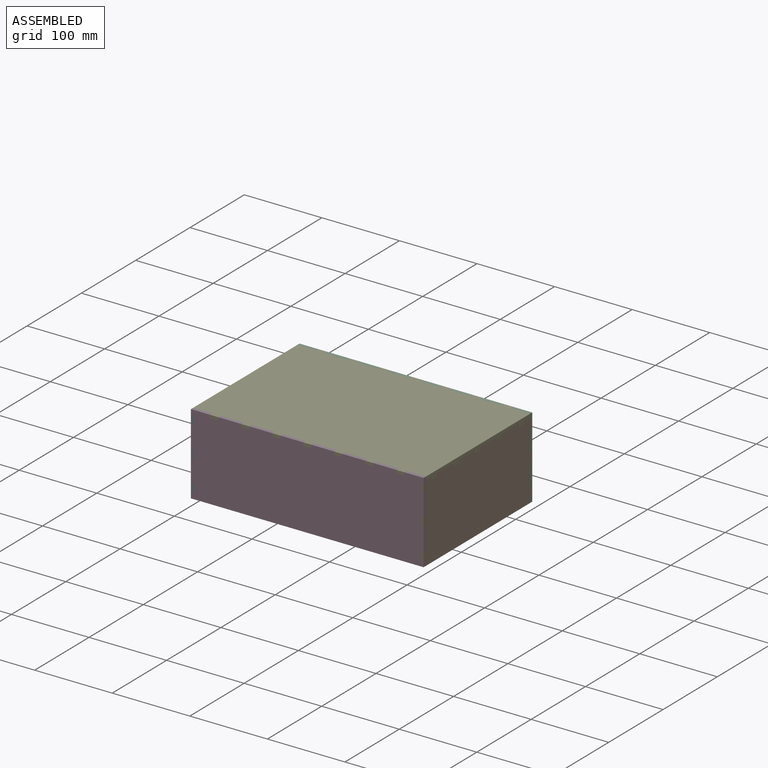
[diagram: assembled view]
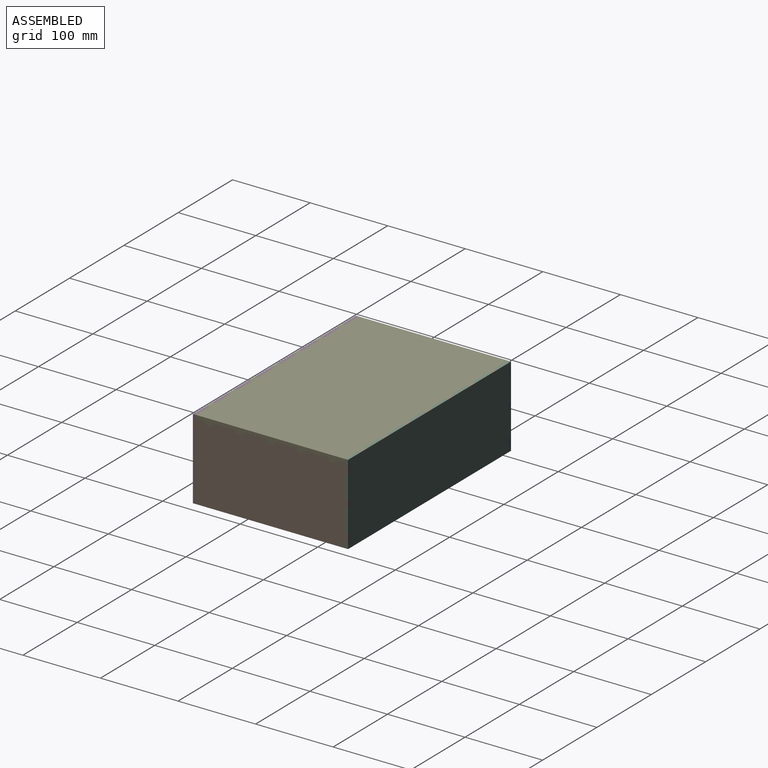
[diagram: assembled view, second angle]
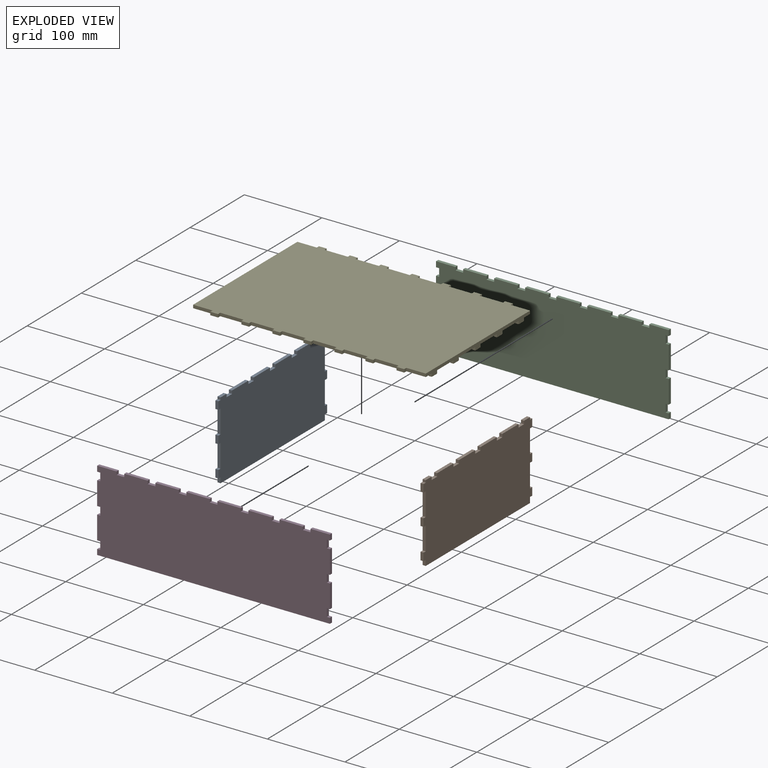
[diagram: exploded view]
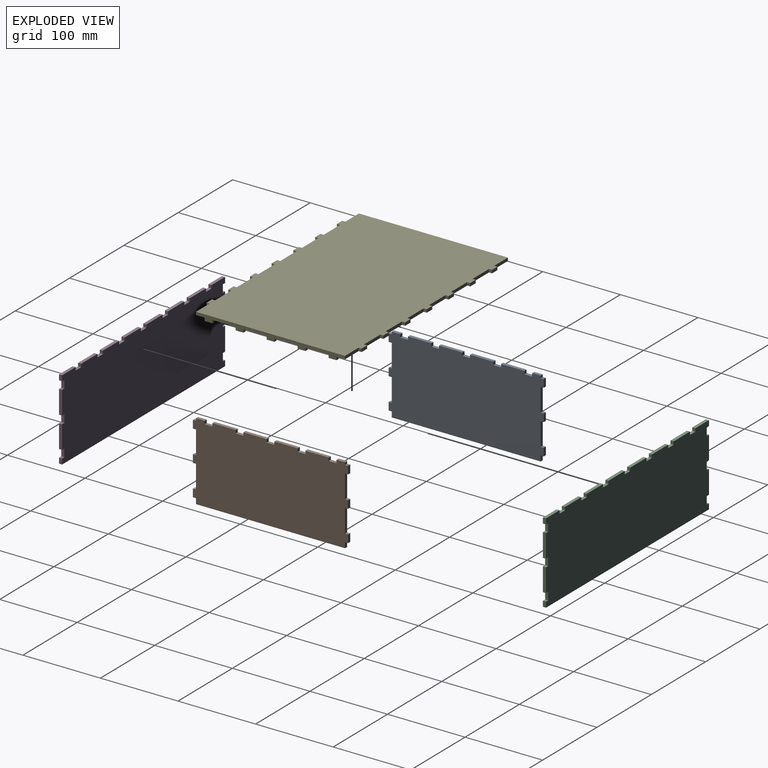
[diagram: exploded view, second angle]
ASSEMBLY  parts=5 mates=4
PART A: 50 faces, bbox 4x200x100 mm
  f0: plane 30x4mm, normal (0,0,1), area 120mm2, adj f5,f6,f45,f47
  f1: plane 30x4mm, normal (0,0,1), area 120mm2, adj f5,f6,f42,f44
  f2: plane 30x4mm, normal (0,0,1), area 120mm2, adj f5,f6,f39,f41
  f3: plane 30x4mm, normal (0,0,1), area 120mm2, adj f5,f6,f36,f38
  f4: plane 11x4mm, normal (0,0,1), area 44mm2, adj f5,f6,f11,f35
  f5: plane 200x100mm, normal (-1,0,0), area 19240.2mm2, adj f0,f1,f2,f3,f4,f7,f8,f9
  f6: plane 200x100mm, normal (1,0,0), area 19240.2mm2, adj f0,f1,f2,f3,f4,f7,f8,f9
  f7: plane 29.99x4mm, normal (0,-1,0), area 120mm2, adj f5,f6,f28,f31
  f8: plane 29.99x4mm, normal (0,-1,0), area 120mm2, adj f5,f6,f30,f33
  f9: plane 6.99x4mm, normal (0,-1,0), area 28mm2, adj f5,f6,f13,f32
  f10: plane 29.99x4mm, normal (0,1,0), area 120mm2, adj f5,f6,f20,f24
  f11: plane 4x3mm, normal (0,1,0), area 12mm2, adj f4,f5,f6,f21
  f12: plane 29.99x4mm, normal (0,1,0), area 120mm2, adj f5,f6,f18,f23
  f13: plane 192x4mm, normal (0,0,-1), area 768mm2, adj f5,f6,f9,f16
  f14: plane 11x4mm, normal (0,0,1), area 44mm2, adj f5,f6,f15,f48
  f15: plane 4x3mm, normal (0,-1,0), area 12mm2, adj f5,f6,f14,f27
  f16: plane 6.99x4mm, normal (0,1,0), area 28mm2, adj f5,f6,f13,f17
  f17: plane 4x4mm, normal (0,0,-1), area 16mm2, adj f5,f6,f16,f19
  f18: plane 4x4mm, normal (0,0,1), area 16mm2, adj f5,f6,f12,f19
  f19: plane 10.01x4mm, normal (0,1,0), area 40mm2, adj f5,f6,f17,f18
  f20: plane 4x4mm, normal (0,0,-1), area 16mm2, adj f5,f6,f10,f22
  f21: plane 4x4mm, normal (0,0,1), area 16mm2, adj f5,f6,f11,f22
  f22: plane 10.01x4mm, normal (0,1,0), area 40mm2, adj f5,f6,f20,f21
  f23: plane 4x4mm, normal (0,0,-1), area 16mm2, adj f5,f6,f12,f25
  f24: plane 4x4mm, normal (0,0,1), area 16mm2, adj f5,f6,f10,f25
  f25: plane 10.01x4mm, normal (0,1,0), area 40mm2, adj f5,f6,f23,f24
  f26: plane 10.01x4mm, normal (0,-1,0), area 40mm2, adj f5,f6,f27,f28
  f27: plane 4x4mm, normal (0,0,1), area 16mm2, adj f5,f6,f15,f26
  f28: plane 4x4mm, normal (0,0,-1), area 16mm2, adj f5,f6,f7,f26
  f29: plane 10.01x4mm, normal (0,-1,0), area 40mm2, adj f5,f6,f30,f31
  f30: plane 4x4mm, normal (0,0,-1), area 16mm2, adj f5,f6,f8,f29
  f31: plane 4x4mm, normal (0,0,1), area 16mm2, adj f5,f6,f7,f29
  f32: plane 4x4mm, normal (0,0,-1), area 16mm2, adj f5,f6,f9,f34
  f33: plane 4x4mm, normal (0,0,1), area 16mm2, adj f5,f6,f8,f34
  f34: plane 10.01x4mm, normal (0,-1,0), area 40mm2, adj f5,f6,f32,f33
  f35: plane 4x4mm, normal (0,-1,0), area 16mm2, adj f4,f5,f6,f37
  f36: plane 4x4mm, normal (0,1,0), area 16mm2, adj f3,f5,f6,f37
  f37: plane 10x4mm, normal (0,0,1), area 40mm2, adj f5,f6,f35,f36
  f38: plane 4x4mm, normal (0,-1,0), area 16mm2, adj f3,f5,f6,f40
  f39: plane 4x4mm, normal (0,1,0), area 16mm2, adj f2,f5,f6,f40
  f40: plane 10x4mm, normal (0,0,1), area 40mm2, adj f5,f6,f38,f39
  f41: plane 4x4mm, normal (0,-1,0), area 16mm2, adj f2,f5,f6,f43
  f42: plane 4x4mm, normal (0,1,0), area 16mm2, adj f1,f5,f6,f43
  f43: plane 10x4mm, normal (0,0,1), area 40mm2, adj f5,f6,f41,f42
  f44: plane 4x4mm, normal (0,-1,0), area 16mm2, adj f1,f5,f6,f46
  f45: plane 4x4mm, normal (0,1,0), area 16mm2, adj f0,f5,f6,f46
  f46: plane 10x4mm, normal (0,0,1), area 40mm2, adj f5,f6,f44,f45
  f47: plane 4x4mm, normal (0,-1,0), area 16mm2, adj f0,f5,f6,f49
  f48: plane 4x4mm, normal (0,1,0), area 16mm2, adj f5,f6,f14,f49
  f49: plane 10x4mm, normal (0,0,1), area 40mm2, adj f5,f6,f47,f48
PART B: 50 faces, bbox 4x200x100 mm
  f0: plane 30x4mm, normal (0,0,1), area 120mm2, adj f5,f6,f45,f47
  f1: plane 30x4mm, normal (0,0,1), area 120mm2, adj f5,f6,f42,f44
  f2: plane 30x4mm, normal (0,0,1), area 120mm2, adj f5,f6,f39,f41
  f3: plane 30x4mm, normal (0,0,1), area 120mm2, adj f5,f6,f36,f38
  f4: plane 11x4mm, normal (0,0,1), area 44mm2, adj f5,f6,f11,f35
  f5: plane 200x100mm, normal (1,0,0), area 19240.2mm2, adj f0,f1,f2,f3,f4,f7,f8,f9
  f6: plane 200x100mm, normal (-1,0,0), area 19240.2mm2, adj f0,f1,f2,f3,f4,f7,f8,f9
  f7: plane 29.99x4mm, normal (0,1,0), area 120mm2, adj f5,f6,f28,f31
  f8: plane 29.99x4mm, normal (0,1,0), area 120mm2, adj f5,f6,f30,f33
  f9: plane 6.99x4mm, normal (0,1,0), area 28mm2, adj f5,f6,f13,f32
  f10: plane 29.99x4mm, normal (0,-1,0), area 120mm2, adj f5,f6,f20,f24
  f11: plane 4x3mm, normal (0,-1,0), area 12mm2, adj f4,f5,f6,f21
  f12: plane 29.99x4mm, normal (0,-1,0), area 120mm2, adj f5,f6,f18,f23
  f13: plane 192x4mm, normal (0,0,-1), area 768mm2, adj f5,f6,f9,f16
  f14: plane 11x4mm, normal (0,0,1), area 44mm2, adj f5,f6,f15,f48
  f15: plane 4x3mm, normal (0,1,0), area 12mm2, adj f5,f6,f14,f27
  f16: plane 6.99x4mm, normal (0,-1,0), area 28mm2, adj f5,f6,f13,f17
  f17: plane 4x4mm, normal (0,0,-1), area 16mm2, adj f5,f6,f16,f19
  f18: plane 4x4mm, normal (0,0,1), area 16mm2, adj f5,f6,f12,f19
  f19: plane 10.01x4mm, normal (0,-1,0), area 40mm2, adj f5,f6,f17,f18
  f20: plane 4x4mm, normal (0,0,-1), area 16mm2, adj f5,f6,f10,f22
  f21: plane 4x4mm, normal (0,0,1), area 16mm2, adj f5,f6,f11,f22
  f22: plane 10.01x4mm, normal (0,-1,0), area 40mm2, adj f5,f6,f20,f21
  f23: plane 4x4mm, normal (0,0,-1), area 16mm2, adj f5,f6,f12,f25
  f24: plane 4x4mm, normal (0,0,1), area 16mm2, adj f5,f6,f10,f25
  f25: plane 10.01x4mm, normal (0,-1,0), area 40mm2, adj f5,f6,f23,f24
  f26: plane 10.01x4mm, normal (0,1,0), area 40mm2, adj f5,f6,f27,f28
  f27: plane 4x4mm, normal (0,0,1), area 16mm2, adj f5,f6,f15,f26
  f28: plane 4x4mm, normal (0,0,-1), area 16mm2, adj f5,f6,f7,f26
  f29: plane 10.01x4mm, normal (0,1,0), area 40mm2, adj f5,f6,f30,f31
  f30: plane 4x4mm, normal (0,0,-1), area 16mm2, adj f5,f6,f8,f29
  f31: plane 4x4mm, normal (0,0,1), area 16mm2, adj f5,f6,f7,f29
  f32: plane 4x4mm, normal (0,0,-1), area 16mm2, adj f5,f6,f9,f34
  f33: plane 4x4mm, normal (0,0,1), area 16mm2, adj f5,f6,f8,f34
  f34: plane 10.01x4mm, normal (0,1,0), area 40mm2, adj f5,f6,f32,f33
  f35: plane 4x4mm, normal (0,1,0), area 16mm2, adj f4,f5,f6,f37
  f36: plane 4x4mm, normal (0,-1,0), area 16mm2, adj f3,f5,f6,f37
  f37: plane 10x4mm, normal (0,0,1), area 40mm2, adj f5,f6,f35,f36
  f38: plane 4x4mm, normal (0,1,0), area 16mm2, adj f3,f5,f6,f40
  f39: plane 4x4mm, normal (0,-1,0), area 16mm2, adj f2,f5,f6,f40
  f40: plane 10x4mm, normal (0,0,1), area 40mm2, adj f5,f6,f38,f39
  f41: plane 4x4mm, normal (0,1,0), area 16mm2, adj f2,f5,f6,f43
  f42: plane 4x4mm, normal (0,-1,0), area 16mm2, adj f1,f5,f6,f43
  f43: plane 10x4mm, normal (0,0,1), area 40mm2, adj f5,f6,f41,f42
  f44: plane 4x4mm, normal (0,1,0), area 16mm2, adj f1,f5,f6,f46
  f45: plane 4x4mm, normal (0,-1,0), area 16mm2, adj f0,f5,f6,f46
  f46: plane 10x4mm, normal (0,0,1), area 40mm2, adj f5,f6,f44,f45
  f47: plane 4x4mm, normal (0,1,0), area 16mm2, adj f0,f5,f6,f49
  f48: plane 4x4mm, normal (0,-1,0), area 16mm2, adj f5,f6,f14,f49
  f49: plane 10x4mm, normal (0,0,1), area 40mm2, adj f5,f6,f47,f48
PART C: 58 faces, bbox 300x4x104 mm
  f0: plane 7x4mm, normal (-1,0,0), area 28mm2, adj f6,f7,f18,f51
  f1: plane 29.99x4mm, normal (-1,0,0), area 120mm2, adj f6,f7,f48,f49
  f2: plane 29.99x4mm, normal (-1,0,0), area 120mm2, adj f6,f7,f45,f46
  f3: plane 7x4mm, normal (1,0,0), area 28mm2, adj f6,f7,f38,f56
  f4: plane 29.99x4mm, normal (1,0,0), area 120mm2, adj f6,f7,f40,f53
  f5: plane 29.99x4mm, normal (1,0,0), area 120mm2, adj f6,f7,f41,f55
  f6: plane 300x104mm, normal (0,-1,0), area 30679.8mm2, adj f0,f1,f2,f3,f4,f5,f8,f9
  f7: plane 300x104mm, normal (0,1,0), area 30679.8mm2, adj f0,f1,f2,f3,f4,f5,f8,f9
  f8: plane 10x4mm, normal (0,0,1), area 40mm2, adj f6,f7,f34,f36
  f9: plane 10x4mm, normal (0,0,1), area 40mm2, adj f6,f7,f31,f33
  f10: plane 10x4mm, normal (0,0,1), area 40mm2, adj f6,f7,f28,f30
  f11: plane 10x4mm, normal (0,0,1), area 40mm2, adj f6,f7,f25,f27
  f12: plane 10x4mm, normal (0,0,1), area 40mm2, adj f6,f7,f37,f39
  f13: plane 10x4mm, normal (0,0,1), area 40mm2, adj f6,f7,f22,f24
  f14: plane 10x4mm, normal (0,0,1), area 40mm2, adj f6,f7,f19,f21
  f15: plane 6.99x4mm, normal (-1,0,0), area 28mm2, adj f6,f7,f17,f43
  f16: plane 6.99x4mm, normal (1,0,0), area 28mm2, adj f6,f7,f17,f52
  f17: plane 300x4mm, normal (0,0,-1), area 1200mm2, adj f6,f7,f15,f16
  f18: plane 25x4mm, normal (0,0,1), area 100mm2, adj f0,f6,f7,f19
  f19: plane 4x4mm, normal (1,0,0), area 16mm2, adj f6,f7,f14,f18
  f20: plane 30x4mm, normal (0,0,1), area 120mm2, adj f6,f7,f21,f22
  f21: plane 4x4mm, normal (-1,0,0), area 16mm2, adj f6,f7,f14,f20
  f22: plane 4x4mm, normal (1,0,0), area 16mm2, adj f6,f7,f13,f20
  f23: plane 30x4mm, normal (0,0,1), area 120mm2, adj f6,f7,f24,f25
  f24: plane 4x4mm, normal (-1,0,0), area 16mm2, adj f6,f7,f13,f23
  f25: plane 4x4mm, normal (1,0,0), area 16mm2, adj f6,f7,f11,f23
  f26: plane 30x4mm, normal (0,0,1), area 120mm2, adj f6,f7,f27,f28
  f27: plane 4x4mm, normal (-1,0,0), area 16mm2, adj f6,f7,f11,f26
  f28: plane 4x4mm, normal (1,0,0), area 16mm2, adj f6,f7,f10,f26
  f29: plane 30x4mm, normal (0,0,1), area 120mm2, adj f6,f7,f30,f31
  f30: plane 4x4mm, normal (-1,0,0), area 16mm2, adj f6,f7,f10,f29
  f31: plane 4x4mm, normal (1,0,0), area 16mm2, adj f6,f7,f9,f29
  f32: plane 30x4mm, normal (0,0,1), area 120mm2, adj f6,f7,f33,f34
  f33: plane 4x4mm, normal (-1,0,0), area 16mm2, adj f6,f7,f9,f32
  f34: plane 4x4mm, normal (1,0,0), area 16mm2, adj f6,f7,f8,f32
  f35: plane 30x4mm, normal (0,0,1), area 120mm2, adj f6,f7,f36,f37
  f36: plane 4x4mm, normal (-1,0,0), area 16mm2, adj f6,f7,f8,f35
  f37: plane 4x4mm, normal (1,0,0), area 16mm2, adj f6,f7,f12,f35
  f38: plane 25x4mm, normal (0,0,1), area 100mm2, adj f3,f6,f7,f39
  f39: plane 4x4mm, normal (-1,0,0), area 16mm2, adj f6,f7,f12,f38
  f40: plane 4x4mm, normal (0,0,1), area 16mm2, adj f4,f6,f7,f42
  f41: plane 4x4mm, normal (0,0,-1), area 16mm2, adj f5,f6,f7,f42
  f42: plane 10.01x4mm, normal (1,0,0), area 40mm2, adj f6,f7,f40,f41
  f43: plane 4x4mm, normal (0,0,1), area 16mm2, adj f6,f7,f15,f44
  f44: plane 10.01x4mm, normal (-1,0,0), area 40mm2, adj f6,f7,f43,f45
  f45: plane 4x4mm, normal (0,0,-1), area 16mm2, adj f2,f6,f7,f44
  f46: plane 4x4mm, normal (0,0,1), area 16mm2, adj f2,f6,f7,f47
  f47: plane 10.01x4mm, normal (-1,0,0), area 40mm2, adj f6,f7,f46,f48
  f48: plane 4x4mm, normal (0,0,-1), area 16mm2, adj f1,f6,f7,f47
  f49: plane 4x4mm, normal (0,0,1), area 16mm2, adj f1,f6,f7,f50
  f50: plane 10.01x4mm, normal (-1,0,0), area 40mm2, adj f6,f7,f49,f51
  f51: plane 4x4mm, normal (0,0,-1), area 16mm2, adj f0,f6,f7,f50
  f52: plane 4x4mm, normal (0,0,1), area 16mm2, adj f6,f7,f16,f54
  f53: plane 4x4mm, normal (0,0,-1), area 16mm2, adj f4,f6,f7,f54
  f54: plane 10.01x4mm, normal (1,0,0), area 40mm2, adj f6,f7,f52,f53
  f55: plane 4x4mm, normal (0,0,1), area 16mm2, adj f5,f6,f7,f57
  f56: plane 4x4mm, normal (0,0,-1), area 16mm2, adj f3,f6,f7,f57
  f57: plane 10.01x4mm, normal (1,0,0), area 40mm2, adj f6,f7,f55,f56
PART D: 58 faces, bbox 300x4x104 mm
  f0: plane 7x4mm, normal (-1,0,0), area 28mm2, adj f6,f7,f18,f51
  f1: plane 29.99x4mm, normal (-1,0,0), area 120mm2, adj f6,f7,f48,f49
  f2: plane 29.99x4mm, normal (-1,0,0), area 120mm2, adj f6,f7,f45,f46
  f3: plane 7x4mm, normal (1,0,0), area 28mm2, adj f6,f7,f38,f56
  f4: plane 29.99x4mm, normal (1,0,0), area 120mm2, adj f6,f7,f40,f53
  f5: plane 29.99x4mm, normal (1,0,0), area 120mm2, adj f6,f7,f41,f55
  f6: plane 300x104mm, normal (0,1,0), area 30679.8mm2, adj f0,f1,f2,f3,f4,f5,f8,f9
  f7: plane 300x104mm, normal (0,-1,0), area 30679.8mm2, adj f0,f1,f2,f3,f4,f5,f8,f9
  f8: plane 10x4mm, normal (0,0,1), area 40mm2, adj f6,f7,f34,f36
  f9: plane 10x4mm, normal (0,0,1), area 40mm2, adj f6,f7,f31,f33
  f10: plane 10x4mm, normal (0,0,1), area 40mm2, adj f6,f7,f28,f30
  f11: plane 10x4mm, normal (0,0,1), area 40mm2, adj f6,f7,f25,f27
  f12: plane 10x4mm, normal (0,0,1), area 40mm2, adj f6,f7,f37,f39
  f13: plane 10x4mm, normal (0,0,1), area 40mm2, adj f6,f7,f22,f24
  f14: plane 10x4mm, normal (0,0,1), area 40mm2, adj f6,f7,f19,f21
  f15: plane 6.99x4mm, normal (-1,0,0), area 28mm2, adj f6,f7,f17,f43
  f16: plane 6.99x4mm, normal (1,0,0), area 28mm2, adj f6,f7,f17,f52
  f17: plane 300x4mm, normal (0,0,-1), area 1200mm2, adj f6,f7,f15,f16
  f18: plane 25x4mm, normal (0,0,1), area 100mm2, adj f0,f6,f7,f19
  f19: plane 4x4mm, normal (1,0,0), area 16mm2, adj f6,f7,f14,f18
  f20: plane 30x4mm, normal (0,0,1), area 120mm2, adj f6,f7,f21,f22
  f21: plane 4x4mm, normal (-1,0,0), area 16mm2, adj f6,f7,f14,f20
  f22: plane 4x4mm, normal (1,0,0), area 16mm2, adj f6,f7,f13,f20
  f23: plane 30x4mm, normal (0,0,1), area 120mm2, adj f6,f7,f24,f25
  f24: plane 4x4mm, normal (-1,0,0), area 16mm2, adj f6,f7,f13,f23
  f25: plane 4x4mm, normal (1,0,0), area 16mm2, adj f6,f7,f11,f23
  f26: plane 30x4mm, normal (0,0,1), area 120mm2, adj f6,f7,f27,f28
  f27: plane 4x4mm, normal (-1,0,0), area 16mm2, adj f6,f7,f11,f26
  f28: plane 4x4mm, normal (1,0,0), area 16mm2, adj f6,f7,f10,f26
  f29: plane 30x4mm, normal (0,0,1), area 120mm2, adj f6,f7,f30,f31
  f30: plane 4x4mm, normal (-1,0,0), area 16mm2, adj f6,f7,f10,f29
  f31: plane 4x4mm, normal (1,0,0), area 16mm2, adj f6,f7,f9,f29
  f32: plane 30x4mm, normal (0,0,1), area 120mm2, adj f6,f7,f33,f34
  f33: plane 4x4mm, normal (-1,0,0), area 16mm2, adj f6,f7,f9,f32
  f34: plane 4x4mm, normal (1,0,0), area 16mm2, adj f6,f7,f8,f32
  f35: plane 30x4mm, normal (0,0,1), area 120mm2, adj f6,f7,f36,f37
  f36: plane 4x4mm, normal (-1,0,0), area 16mm2, adj f6,f7,f8,f35
  f37: plane 4x4mm, normal (1,0,0), area 16mm2, adj f6,f7,f12,f35
  f38: plane 25x4mm, normal (0,0,1), area 100mm2, adj f3,f6,f7,f39
  f39: plane 4x4mm, normal (-1,0,0), area 16mm2, adj f6,f7,f12,f38
  f40: plane 4x4mm, normal (0,0,1), area 16mm2, adj f4,f6,f7,f42
  f41: plane 4x4mm, normal (0,0,-1), area 16mm2, adj f5,f6,f7,f42
  f42: plane 10.01x4mm, normal (1,0,0), area 40mm2, adj f6,f7,f40,f41
  f43: plane 4x4mm, normal (0,0,1), area 16mm2, adj f6,f7,f15,f44
  f44: plane 10.01x4mm, normal (-1,0,0), area 40mm2, adj f6,f7,f43,f45
  f45: plane 4x4mm, normal (0,0,-1), area 16mm2, adj f2,f6,f7,f44
  f46: plane 4x4mm, normal (0,0,1), area 16mm2, adj f2,f6,f7,f47
  f47: plane 10.01x4mm, normal (-1,0,0), area 40mm2, adj f6,f7,f46,f48
  f48: plane 4x4mm, normal (0,0,-1), area 16mm2, adj f1,f6,f7,f47
  f49: plane 4x4mm, normal (0,0,1), area 16mm2, adj f1,f6,f7,f50
  f50: plane 10.01x4mm, normal (-1,0,0), area 40mm2, adj f6,f7,f49,f51
  f51: plane 4x4mm, normal (0,0,-1), area 16mm2, adj f0,f6,f7,f50
  f52: plane 4x4mm, normal (0,0,1), area 16mm2, adj f6,f7,f16,f54
  f53: plane 4x4mm, normal (0,0,-1), area 16mm2, adj f4,f6,f7,f54
  f54: plane 10.01x4mm, normal (1,0,0), area 40mm2, adj f6,f7,f52,f53
  f55: plane 4x4mm, normal (0,0,1), area 16mm2, adj f5,f6,f7,f57
  f56: plane 4x4mm, normal (0,0,-1), area 16mm2, adj f3,f6,f7,f57
  f57: plane 10.01x4mm, normal (1,0,0), area 40mm2, adj f6,f7,f55,f56
PART E: 102 faces, bbox 300x200x8 mm
  f0: plane 300x200mm, normal (0,0,-1), area 57760mm2, adj f1,f2,f3,f4,f6,f7,f8,f10
  f1: plane 4x4mm, normal (0,-1,0), area 16mm2, adj f0,f2,f4,f5
  f2: plane 192x8mm, normal (-1,0,0), area 968mm2, adj f0,f1,f3,f5,f6,f7,f9,f10
  f3: plane 4x4mm, normal (0,1,0), area 16mm2, adj f0,f2,f4,f5
  f4: plane 10x4mm, normal (1,0,0), area 40mm2, adj f0,f1,f3,f5
  f5: plane 10x4mm, normal (0,0,-1), area 40mm2, adj f1,f2,f3,f4
  f6: plane 4x4mm, normal (0,-1,0), area 16mm2, adj f0,f2,f8,f9
  f7: plane 4x4mm, normal (0,1,0), area 16mm2, adj f0,f2,f8,f9
  f8: plane 10x4mm, normal (1,0,0), area 40mm2, adj f0,f6,f7,f9
  f9: plane 10x4mm, normal (0,0,-1), area 40mm2, adj f2,f6,f7,f8
  f10: plane 4x4mm, normal (0,-1,0), area 16mm2, adj f0,f2,f12,f13
  f11: plane 4x4mm, normal (0,1,0), area 16mm2, adj f0,f2,f12,f13
  f12: plane 10x4mm, normal (1,0,0), area 40mm2, adj f0,f10,f11,f13
  f13: plane 10x4mm, normal (0,0,-1), area 40mm2, adj f2,f10,f11,f12
  f14: plane 4x4mm, normal (0,-1,0), area 16mm2, adj f0,f2,f16,f17
  f15: plane 4x4mm, normal (0,1,0), area 16mm2, adj f0,f2,f16,f17
  f16: plane 10x4mm, normal (1,0,0), area 40mm2, adj f0,f14,f15,f17
  f17: plane 10x4mm, normal (0,0,-1), area 40mm2, adj f2,f14,f15,f16
  f18: plane 4x4mm, normal (0,-1,0), area 16mm2, adj f0,f2,f20,f21
  f19: plane 4x4mm, normal (0,1,0), area 16mm2, adj f0,f2,f20,f21
  f20: plane 10x4mm, normal (1,0,0), area 40mm2, adj f0,f18,f19,f21
  f21: plane 10x4mm, normal (0,0,-1), area 40mm2, adj f2,f18,f19,f20
  f22: plane 10x4mm, normal (0,1,0), area 40mm2, adj f0,f23,f80,f81
  f23: plane 4x4mm, normal (1,0,0), area 16mm2, adj f0,f22,f24,f81
  f24: plane 30x4mm, normal (0,1,0), area 120mm2, adj f0,f23,f25,f81
  f25: plane 4x4mm, normal (-1,0,0), area 16mm2, adj f0,f24,f26,f81
  f26: plane 10x4mm, normal (0,1,0), area 40mm2, adj f0,f25,f27,f81
  f27: plane 4x4mm, normal (1,0,0), area 16mm2, adj f0,f26,f28,f81
  f28: plane 25x4mm, normal (0,1,0), area 100mm2, adj f0,f27,f29,f81
  f29: plane 192x8mm, normal (1,0,0), area 968mm2, adj f0,f28,f30,f81,f82,f84,f85,f86
  f30: plane 25x4mm, normal (0,-1,0), area 100mm2, adj f0,f29,f31,f81
  f31: plane 4x4mm, normal (1,0,0), area 16mm2, adj f0,f30,f32,f81
  f32: plane 10x4mm, normal (0,-1,0), area 40mm2, adj f0,f31,f33,f81
  f33: plane 4x4mm, normal (-1,0,0), area 16mm2, adj f0,f32,f34,f81
  f34: plane 30x4mm, normal (0,-1,0), area 120mm2, adj f0,f33,f35,f81
  f35: plane 4x4mm, normal (1,0,0), area 16mm2, adj f0,f34,f36,f81
  f36: plane 10x4mm, normal (0,-1,0), area 40mm2, adj f0,f35,f37,f81
  f37: plane 4x4mm, normal (-1,0,0), area 16mm2, adj f0,f36,f38,f81
  f38: plane 30x4mm, normal (0,-1,0), area 120mm2, adj f0,f37,f39,f81
  f39: plane 4x4mm, normal (1,0,0), area 16mm2, adj f0,f38,f40,f81
  f40: plane 10x4mm, normal (0,-1,0), area 40mm2, adj f0,f39,f41,f81
  f41: plane 4x4mm, normal (-1,0,0), area 16mm2, adj f0,f40,f42,f81
  f42: plane 30x4mm, normal (0,-1,0), area 120mm2, adj f0,f41,f43,f81
  f43: plane 4x4mm, normal (1,0,0), area 16mm2, adj f0,f42,f44,f81
  f44: plane 10x4mm, normal (0,-1,0), area 40mm2, adj f0,f43,f45,f81
  f45: plane 4x4mm, normal (-1,0,0), area 16mm2, adj f0,f44,f46,f81
  f46: plane 30x4mm, normal (0,-1,0), area 120mm2, adj f0,f45,f47,f81
  f47: plane 4x4mm, normal (1,0,0), area 16mm2, adj f0,f46,f48,f81
  f48: plane 10x4mm, normal (0,-1,0), area 40mm2, adj f0,f47,f49,f81
  f49: plane 4x4mm, normal (-1,0,0), area 16mm2, adj f0,f48,f50,f81
  f50: plane 30x4mm, normal (0,-1,0), area 120mm2, adj f0,f49,f51,f81
  f51: plane 4x4mm, normal (1,0,0), area 16mm2, adj f0,f50,f52,f81
  f52: plane 10x4mm, normal (0,-1,0), area 40mm2, adj f0,f51,f53,f81
  f53: plane 4x4mm, normal (-1,0,0), area 16mm2, adj f0,f52,f54,f81
  f54: plane 30x4mm, normal (0,-1,0), area 120mm2, adj f0,f53,f55,f81
  f55: plane 4x4mm, normal (1,0,0), area 16mm2, adj f0,f54,f56,f81
  f56: plane 10x4mm, normal (0,-1,0), area 40mm2, adj f0,f55,f57,f81
  f57: plane 4x4mm, normal (-1,0,0), area 16mm2, adj f0,f56,f58,f81
  f58: plane 25x4mm, normal (0,-1,0), area 100mm2, adj f0,f2,f57,f81
  f59: plane 25x4mm, normal (0,1,0), area 100mm2, adj f0,f2,f60,f81
  f60: plane 4x4mm, normal (-1,0,0), area 16mm2, adj f0,f59,f61,f81
  f61: plane 10x4mm, normal (0,1,0), area 40mm2, adj f0,f60,f62,f81
  f62: plane 4x4mm, normal (1,0,0), area 16mm2, adj f0,f61,f63,f81
  f63: plane 30x4mm, normal (0,1,0), area 120mm2, adj f0,f62,f64,f81
  f64: plane 4x4mm, normal (-1,0,0), area 16mm2, adj f0,f63,f65,f81
  f65: plane 10x4mm, normal (0,1,0), area 40mm2, adj f0,f64,f66,f81
  f66: plane 4x4mm, normal (1,0,0), area 16mm2, adj f0,f65,f67,f81
  f67: plane 30x4mm, normal (0,1,0), area 120mm2, adj f0,f66,f68,f81
  f68: plane 4x4mm, normal (-1,0,0), area 16mm2, adj f0,f67,f69,f81
  f69: plane 10x4mm, normal (0,1,0), area 40mm2, adj f0,f68,f70,f81
  f70: plane 4x4mm, normal (1,0,0), area 16mm2, adj f0,f69,f71,f81
  f71: plane 30x4mm, normal (0,1,0), area 120mm2, adj f0,f70,f72,f81
  f72: plane 4x4mm, normal (-1,0,0), area 16mm2, adj f0,f71,f73,f81
  f73: plane 10x4mm, normal (0,1,0), area 40mm2, adj f0,f72,f74,f81
  f74: plane 4x4mm, normal (1,0,0), area 16mm2, adj f0,f73,f75,f81
  f75: plane 30x4mm, normal (0,1,0), area 120mm2, adj f0,f74,f76,f81
  f76: plane 4x4mm, normal (-1,0,0), area 16mm2, adj f0,f75,f77,f81
  f77: plane 10x4mm, normal (0,1,0), area 40mm2, adj f0,f76,f78,f81
  f78: plane 4x4mm, normal (1,0,0), area 16mm2, adj f0,f77,f79,f81
  f79: plane 30x4mm, normal (0,1,0), area 120mm2, adj f0,f78,f80,f81
  f80: plane 4x4mm, normal (-1,0,0), area 16mm2, adj f0,f22,f79,f81
  f81: plane 300x200mm, normal (0,0,1), area 58160mm2, adj f2,f22,f23,f24,f25,f26,f27,f28
  f82: plane 10x4mm, normal (0,0,-1), area 40mm2, adj f29,f83,f84,f85
  f83: plane 10x4mm, normal (-1,0,0), area 40mm2, adj f0,f82,f84,f85
  f84: plane 4x4mm, normal (0,-1,0), area 16mm2, adj f0,f29,f82,f83
  f85: plane 4x4mm, normal (0,1,0), area 16mm2, adj f0,f29,f82,f83
  f86: plane 10x4mm, normal (0,0,-1), area 40mm2, adj f29,f87,f88,f89
  f87: plane 10x4mm, normal (-1,0,0), area 40mm2, adj f0,f86,f88,f89
  f88: plane 4x4mm, normal (0,-1,0), area 16mm2, adj f0,f29,f86,f87
  f89: plane 4x4mm, normal (0,1,0), area 16mm2, adj f0,f29,f86,f87
  f90: plane 10x4mm, normal (0,0,-1), area 40mm2, adj f29,f91,f92,f93
  f91: plane 10x4mm, normal (-1,0,0), area 40mm2, adj f0,f90,f92,f93
  f92: plane 4x4mm, normal (0,-1,0), area 16mm2, adj f0,f29,f90,f91
  f93: plane 4x4mm, normal (0,1,0), area 16mm2, adj f0,f29,f90,f91
  f94: plane 10x4mm, normal (0,0,-1), area 40mm2, adj f29,f95,f96,f97
  f95: plane 10x4mm, normal (-1,0,0), area 40mm2, adj f0,f94,f96,f97
  f96: plane 4x4mm, normal (0,-1,0), area 16mm2, adj f0,f29,f94,f95
  f97: plane 4x4mm, normal (0,1,0), area 16mm2, adj f0,f29,f94,f95
  f98: plane 4x4mm, normal (0,-1,0), area 16mm2, adj f0,f29,f100,f101
  f99: plane 4x4mm, normal (0,1,0), area 16mm2, adj f0,f29,f100,f101
  f100: plane 10x4mm, normal (-1,0,0), area 40mm2, adj f0,f98,f99,f101
  f101: plane 10x4mm, normal (0,0,-1), area 40mm2, adj f29,f98,f99,f100
PLACE A t=(-550.08,-163.69,44.77)mm
PLACE B t=(41.92,-163.69,44.77)mm
PLACE C t=(-254.08,-163.69,44.77)mm
PLACE D t=(-254.08,-163.69,44.77)mm
PLACE E t=(-254.08,-163.69,44.77)mm
MATE fastened E.f9 <-> A.f46  axis (0,0,-1) through (-402.08,-203.69,40.77)mm
MATE fastened D.f6 <-> B.f16  axis (0,1,0) through (-104.08,-259.69,-51.73)mm
MATE fastened E.f82 <-> B.f43  axis (0,0,-1) through (-106.08,-163.69,40.77)mm
MATE fastened C.f6 <-> A.f16  axis (0,-1,0) through (-404.08,-67.69,-51.73)mm
